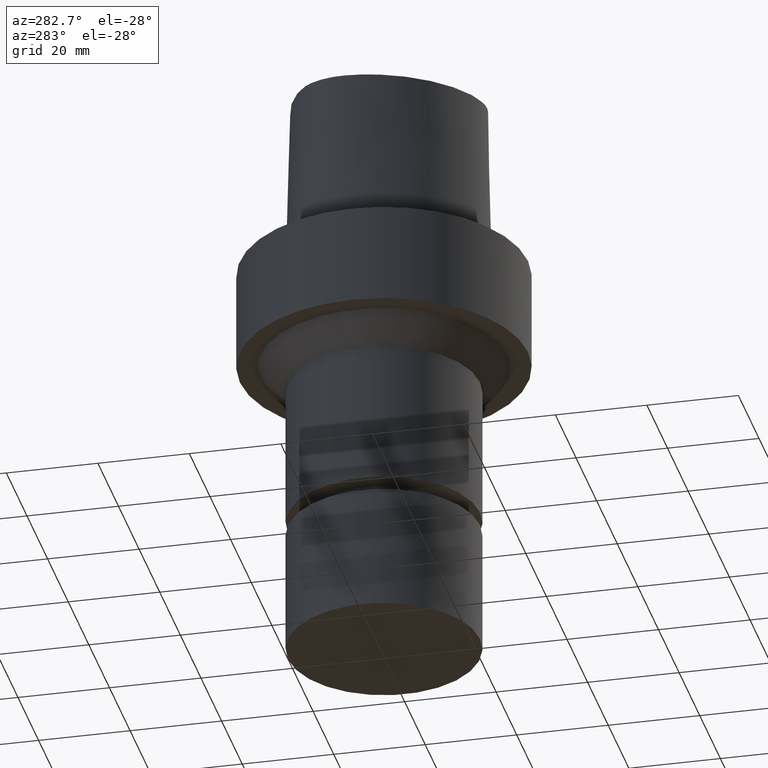
[diagram: clean part render]
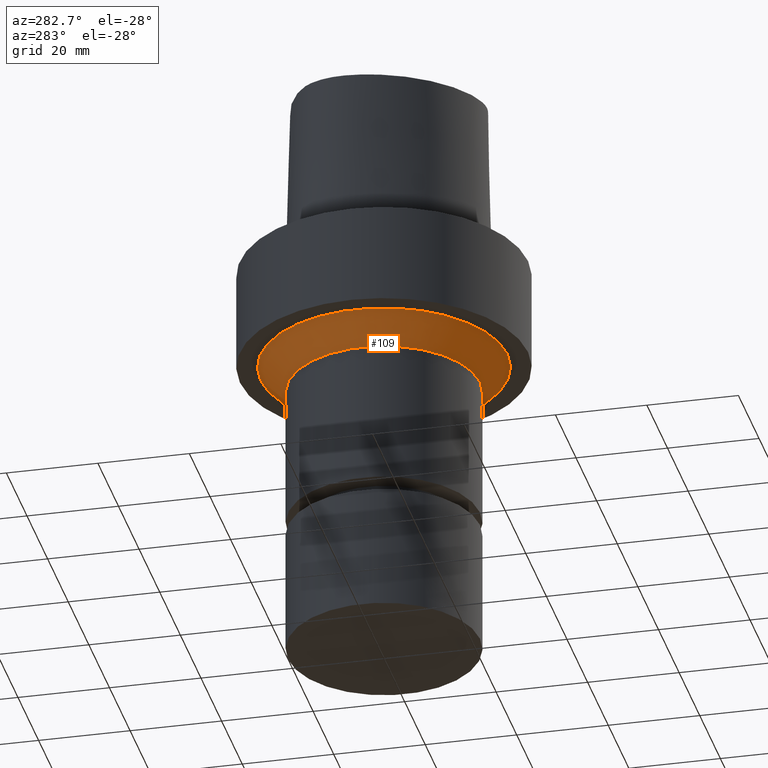
[diagram: same view with one face highlighted and labeled with its STEP entity id]
A machine part, auxiliary view. The second image highlights one B-rep face of the part: STEP entity #109.
In plain terms, the highlighted conical surface has half-angle 45 deg.
Its self-contained STEP definition (entity closure, byte-faithful):
#109=ADVANCED_FACE('Unnamed[1]',(#246,#247),#248,.T.);
#115=EDGE_CURVE('Unnamed[1]',#256,#256,#257,.T.);
#138=EDGE_CURVE('Unnamed[1]',#286,#286,#287,.T.);
#246=FACE_BOUND('',#588,.T.);
#247=FACE_BOUND('',#589,.T.);
#248=CONICAL_SURFACE('',#590,24.0,0.78539816339745);
#256=VERTEX_POINT('',#601);
#257=CIRCLE('',#602,27.0000000000001);
#286=VERTEX_POINT('',#673);
#287=CIRCLE('',#674,21.0);
#588=EDGE_LOOP('',(#791));
#589=EDGE_LOOP('',(#792));
#590=AXIS2_PLACEMENT_3D('',#793,#794,#795);
#601=CARTESIAN_POINT('',(1.34711147906212E-015,27.0000000000001,-22.0000000000005));
#602=AXIS2_PLACEMENT_3D('',#802,#803,#804);
#673=CARTESIAN_POINT('',(1.71450551880633E-015,21.0,-28.0000000000005));
#674=AXIS2_PLACEMENT_3D('',#828,#829,#830);
#791=ORIENTED_EDGE('',*,*,#138,.F.);
#792=ORIENTED_EDGE('',*,*,#115,.T.);
#793=CARTESIAN_POINT('',(1.53080849893423E-015,3.06161699786845E-015,-25.0000000000005));
#794=DIRECTION('',(-6.12323399573677E-017,-1.22464679914735E-016,1.0));
#795=DIRECTION('',(-1.23259516440783E-032,1.0,1.22464679914735E-016));
#802=CARTESIAN_POINT('',(1.34711147906212E-015,2.69422295812424E-015,-22.0000000000005));
#803=DIRECTION('',(6.12323399573677E-017,1.22464679914735E-016,-1.0));
#804=DIRECTION('',(-1.23259516440783E-032,1.0,1.22464679914735E-016));
#828=CARTESIAN_POINT('',(1.71450551880633E-015,3.42901103761266E-015,-28.0000000000006));
#829=DIRECTION('',(6.12323399573677E-017,1.22464679914735E-016,-1.0));
#830=DIRECTION('',(-1.23259516440783E-032,1.0,1.22464679914735E-016));